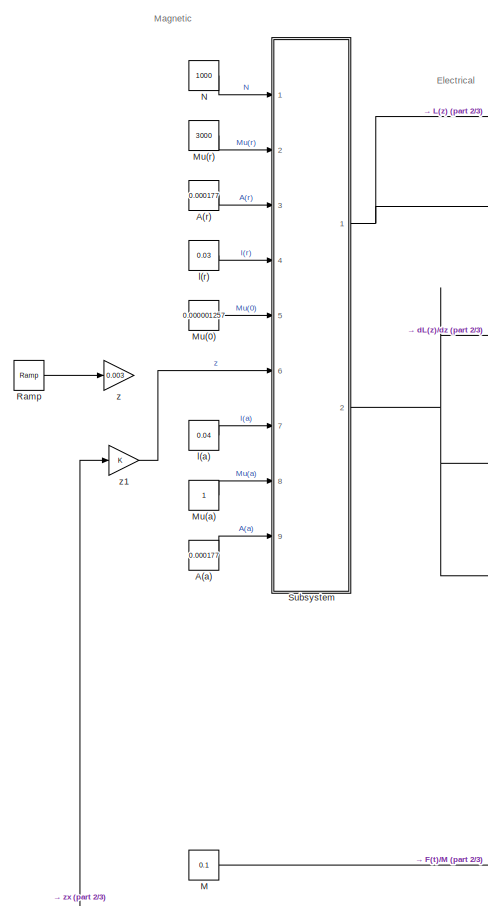
[diagram: root canvas - part 1/3, left side, full height]
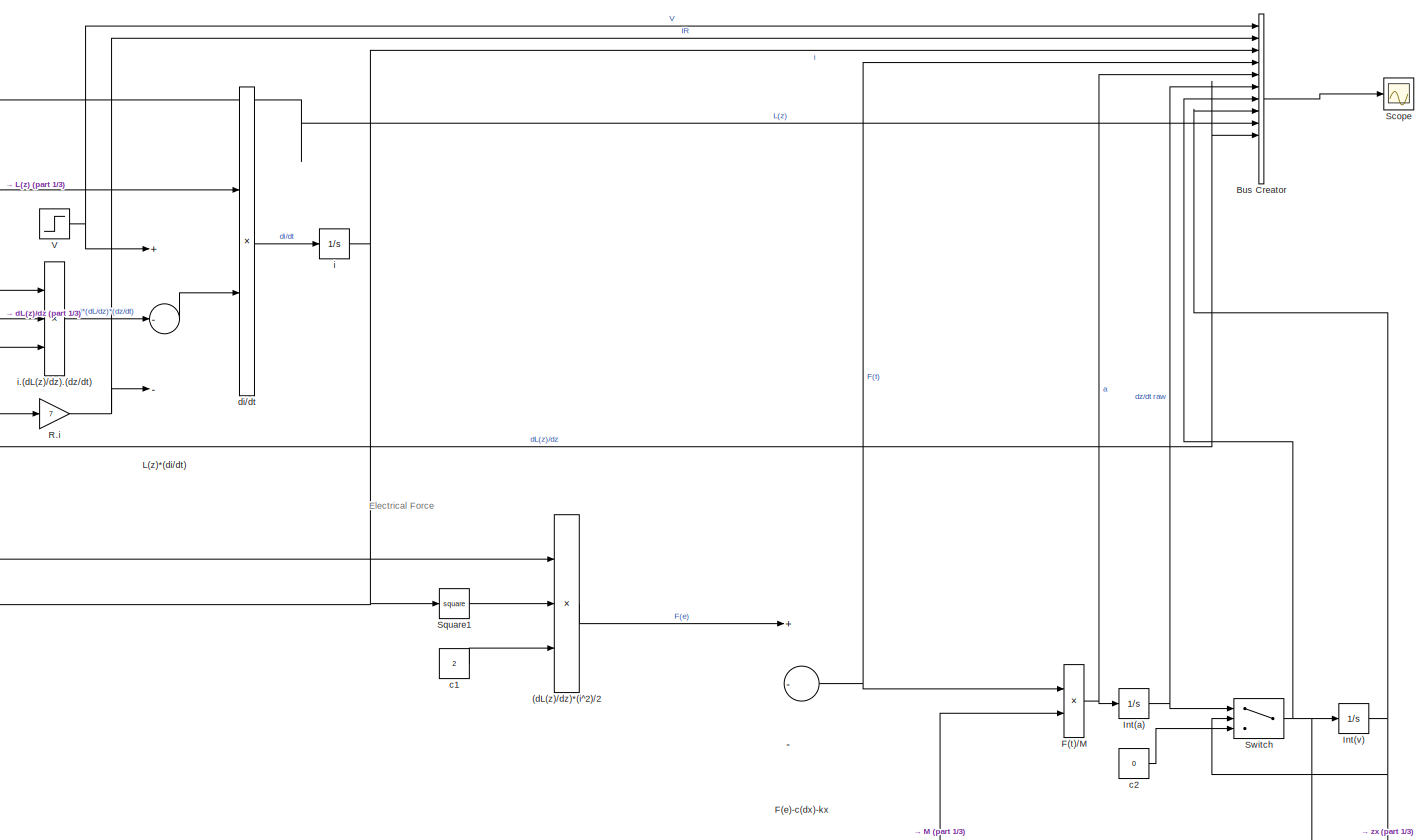
[diagram: root canvas - part 2/3, center side, full height]
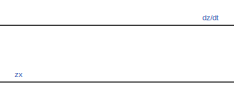
[diagram: root canvas - part 3/3, bottom center region]
MODEL slx_4d389793d27a
KIND model
CONFIG AbsTol = auto
CONFIG FixedStep = 0.00001
CONFIG MaxStep = auto
CONFIG MinStep = auto
CONFIG RelTol = 1e-3
CONFIG SampleTimeConstraint = Unconstrained
CONFIG Solver = FixedStepAuto
CONFIG SolverMode = SingleTasking
CONFIG SolverName = FixedStepAuto
CONFIG StartTime = 0.0
CONFIG StopTime = 5
BLOCK [Product] (dL(z)//dz)*(i^2)//2
  InputSameDT = off
  Inputs = **/
  OutDataTypeStr = Inherit: Inherit via internal rule
  Ports = [3, 1]
  RndMeth = Floor
  SaturateOnIntegerOverflow = off
BLOCK [Constant] A(a)
  Value = 0.000177
BLOCK [Constant] A(r)
  Value = 0.000177
BLOCK [BusCreator] Bus Creator
  DisplayOption = bar
  InheritFromInputs = on
  Inputs = 13
  Ports = [13, 1]
BLOCK [Sum] F(e)-c(dx)-kx
  InputSameDT = off
  Inputs = +--
  OutDataTypeStr = Inherit: Inherit via internal rule
  Ports = [3, 1]
  SaturateOnIntegerOverflow = off
BLOCK [Product] F(t)//M
  InputSameDT = off
  Inputs = */
  OutDataTypeStr = Inherit: Inherit via internal rule
  Ports = [2, 1]
  RndMeth = Floor
  SaturateOnIntegerOverflow = off
BLOCK [Integrator] Int(a)
  LowerSaturationLimit = 0
  Ports = [1, 1]
  UpperSaturationLimit = 10000
BLOCK [Integrator] Int(v)
  LimitOutput = on
  LowerSaturationLimit = 0
  Ports = [1, 1]
  UpperSaturationLimit = 0.03
BLOCK [Sum] L(z)*(di//dt)
  InputSameDT = off
  Inputs = +--
  OutDataTypeStr = Inherit: Inherit via internal rule
  Ports = [3, 1]
  SaturateOnIntegerOverflow = off
BLOCK [Constant] M
  Value = 0.1
BLOCK [Constant] Mu(0)
  Value = 0.000001257
BLOCK [Constant] Mu(a)
BLOCK [Constant] Mu(r)
  Value = 3000
BLOCK [Constant] N
  Value = 1000
BLOCK [Gain] R.i
  Gain = 7
  OutDataTypeStr = Inherit: Inherit via internal rule
  ParamDataTypeStr = Inherit: Inherit via internal rule
  SaturateOnIntegerOverflow = off
BLOCK [Reference] Ramp  REF=simulink/Sources/Ramp
  Ports = [0, 1]
  SourceBlock = simulink/Sources/Ramp
  SourceType = Ramp
BLOCK [Scope] Scope
  Floating = off
  NumInputPorts = 1
  Ports = [1]
  ScopeSpecificationString = Simulink.scopes.TimeScopeBlockCfg('CurrentConfiguration', extmgr.ConfigurationSet(extmgr.Configuration('Core','General UI',true),extmgr.Configuration('Core','Source UI',true),extmgr.Configuration('Sources','WiredSimulink',true),extmgr.Configuration('Visuals','Time Domain',true,'SerializedDisplays',{struct('MinYLimReal','-41.45318','MaxYLimReal','80.27395','YLabelReal','','MinYLimMag','0.00000','Ma...<+2118ch>
BLOCK [Math] Square1
  Operator = square
  Ports = [1, 1]
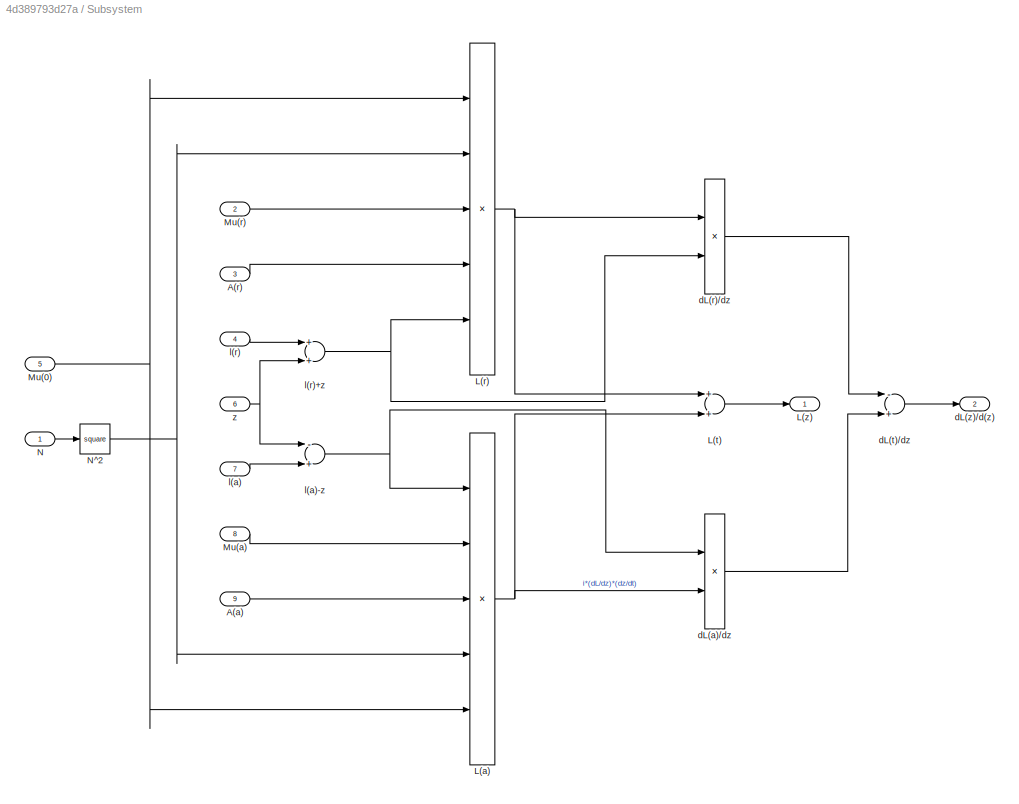
BLOCK [SubSystem] Subsystem
  Ports = [9, 2]
  RequestExecContextInheritance = off
BLOCK [Inport] Subsystem/A(a)
  IconDisplay = Port number
  Port = 9
BLOCK [Inport] Subsystem/A(r)
  IconDisplay = Port number
  Port = 3
BLOCK [Product] Subsystem/L(a)
  InputSameDT = off
  Inputs = /****
  OutDataTypeStr = Inherit: Inherit via internal rule
  Ports = [5, 1]
  RndMeth = Floor
  SaturateOnIntegerOverflow = off
BLOCK [Product] Subsystem/L(r)
  InputSameDT = off
  Inputs = ****/
  OutDataTypeStr = Inherit: Inherit via internal rule
  Ports = [5, 1]
  RndMeth = Floor
  SaturateOnIntegerOverflow = off
BLOCK [Sum] Subsystem/L(t)
  InputSameDT = off
  OutDataTypeStr = Inherit: Inherit via internal rule
  Ports = [2, 1]
  SaturateOnIntegerOverflow = off
BLOCK [Outport] Subsystem/L(z)
  IconDisplay = Port number
BLOCK [Inport] Subsystem/Mu(0)
  IconDisplay = Port number
  Port = 5
BLOCK [Inport] Subsystem/Mu(a)
  IconDisplay = Port number
  Port = 8
BLOCK [Inport] Subsystem/Mu(r)
  IconDisplay = Port number
  Port = 2
BLOCK [Inport] Subsystem/N
  IconDisplay = Port number
BLOCK [Math] Subsystem/N^2
  Operator = square
  Ports = [1, 1]
BLOCK [Product] Subsystem/dL(a)//dz
  InputSameDT = off
  Inputs = /*
  OutDataTypeStr = Inherit: Inherit via internal rule
  Ports = [2, 1]
  RndMeth = Floor
  SaturateOnIntegerOverflow = off
BLOCK [Product] Subsystem/dL(r)//dz
  InputSameDT = off
  Inputs = */
  OutDataTypeStr = Inherit: Inherit via internal rule
  Ports = [2, 1]
  RndMeth = Floor
  SaturateOnIntegerOverflow = off
BLOCK [Sum] Subsystem/dL(t)//dz
  InputSameDT = off
  Inputs = -+
  OutDataTypeStr = Inherit: Inherit via internal rule
  Ports = [2, 1]
  SaturateOnIntegerOverflow = off
BLOCK [Outport] Subsystem/dL(z)//d(z)
  IconDisplay = Port number
  Port = 2
BLOCK [Inport] Subsystem/l(a)
  IconDisplay = Port number
  Port = 7
BLOCK [Sum] Subsystem/l(a)-z
  InputSameDT = off
  Inputs = -+
  OutDataTypeStr = Inherit: Inherit via internal rule
  Ports = [2, 1]
  SaturateOnIntegerOverflow = off
BLOCK [Inport] Subsystem/l(r)
  IconDisplay = Port number
  Port = 4
BLOCK [Sum] Subsystem/l(r)+z
  InputSameDT = off
  OutDataTypeStr = Inherit: Inherit via internal rule
  Ports = [2, 1]
  SaturateOnIntegerOverflow = off
BLOCK [Inport] Subsystem/z
  IconDisplay = Port number
  Port = 6
BLOCK [Switch] Switch
  InputSameDT = off
  SaturateOnIntegerOverflow = off
  Threshold = 0.03
BLOCK [Step] V
  After = 35
  SampleTime = 0
BLOCK [Constant] c1
  Value = 2
BLOCK [Constant] c2
  Value = 0
BLOCK [Product] di//dt
  InputSameDT = off
  Inputs = /*
  OutDataTypeStr = Inherit: Inherit via internal rule
  Ports = [2, 1]
  RndMeth = Floor
  SaturateOnIntegerOverflow = off
BLOCK [Integrator] i
  LowerSaturationLimit = 0
  Ports = [1, 1]
  UpperSaturationLimit = 10000
BLOCK [Product] i.(dL(z)//dz).(dz//dt)
  InputSameDT = off
  Inputs = ***
  OutDataTypeStr = Inherit: Inherit via internal rule
  Ports = [3, 1]
  RndMeth = Floor
  SaturateOnIntegerOverflow = off
BLOCK [Constant] l(a)
  Value = 0.04
BLOCK [Constant] l(r)
  Value = 0.03
BLOCK [Gain] z
  Gain = 0.003
  OutDataTypeStr = Inherit: Inherit via internal rule
  ParamDataTypeStr = Inherit: Inherit via internal rule
  SaturateOnIntegerOverflow = off
BLOCK [Gain] z1
  OutDataTypeStr = Inherit: Inherit via internal rule
  ParamDataTypeStr = Inherit: Inherit via internal rule
  SaturateOnIntegerOverflow = off
ANNOTATION (root): Electrical
ANNOTATION (root): Electrical Force
ANNOTATION (root): Magnetic
LINE (dL(z)//dz)*(i^2)//2:1 -> F(e)-c(dx)-kx:1
LINE A(a):1 -> Subsystem:9
LINE A(r):1 -> Subsystem:3
LINE Bus Creator:1 -> Scope:1
NET F(e)-c(dx)-kx:1 -> Bus Creator:4, F(t)//M:1
NET F(t)//M:1 -> Bus Creator:5, Int(a):1
NET Int(a):1 -> Bus Creator:6, Switch:1
NET Int(v):1 -> Bus Creator:8, Switch:2, z1:1
LINE L(z)*(di//dt):1 -> di//dt:2
LINE M:1 -> F(t)//M:2
LINE Mu(0):1 -> Subsystem:5
LINE Mu(a):1 -> Subsystem:8
LINE Mu(r):1 -> Subsystem:2
LINE N:1 -> Subsystem:1
NET R.i:1 -> Bus Creator:2, L(z)*(di//dt):3
LINE Ramp:1 -> z:1
LINE Square1:1 -> (dL(z)//dz)*(i^2)//2:2
LINE Subsystem/A(a):1 -> Subsystem/L(a):3
LINE Subsystem/A(r):1 -> Subsystem/L(r):4
NET Subsystem/L(a):1 -> Subsystem/L(t):2, Subsystem/dL(a)//dz:2
NET Subsystem/L(r):1 -> Subsystem/L(t):1, Subsystem/dL(r)//dz:1
LINE Subsystem/L(t):1 -> Subsystem/L(z):1
NET Subsystem/Mu(0):1 -> Subsystem/L(a):5, Subsystem/L(r):1
LINE Subsystem/Mu(a):1 -> Subsystem/L(a):2
LINE Subsystem/Mu(r):1 -> Subsystem/L(r):3
LINE Subsystem/N:1 -> Subsystem/N^2:1
NET Subsystem/N^2:1 -> Subsystem/L(a):4, Subsystem/L(r):2
LINE Subsystem/dL(a)//dz:1 -> Subsystem/dL(t)//dz:2
LINE Subsystem/dL(r)//dz:1 -> Subsystem/dL(t)//dz:1
LINE Subsystem/dL(t)//dz:1 -> Subsystem/dL(z)//d(z):1
NET Subsystem/l(a)-z:1 -> Subsystem/L(a):1, Subsystem/dL(a)//dz:1
LINE Subsystem/l(a):1 -> Subsystem/l(a)-z:2
NET Subsystem/l(r)+z:1 -> Subsystem/L(r):5, Subsystem/dL(r)//dz:2
LINE Subsystem/l(r):1 -> Subsystem/l(r)+z:1
NET Subsystem/z:1 -> Subsystem/l(a)-z:1, Subsystem/l(r)+z:2
NET Subsystem:1 -> Bus Creator:9, di//dt:1
NET Subsystem:2 -> (dL(z)//dz)*(i^2)//2:1, Bus Creator:10, i.(dL(z)//dz).(dz//dt):2
NET Switch:1 -> Bus Creator:7, Int(v):1, i.(dL(z)//dz).(dz//dt):1
NET V:1 -> Bus Creator:1, L(z)*(di//dt):1
LINE c1:1 -> (dL(z)//dz)*(i^2)//2:3
LINE c2:1 -> Switch:3
LINE di//dt:1 -> i:1
LINE i.(dL(z)//dz).(dz//dt):1 -> L(z)*(di//dt):2
NET i:1 -> Bus Creator:3, R.i:1, Square1:1, i.(dL(z)//dz).(dz//dt):3
LINE l(a):1 -> Subsystem:7
LINE l(r):1 -> Subsystem:4
LINE z1:1 -> Subsystem:6
note: NET lines group one-source signal fan-out (src -> all destinations, sorted); 1:1 wires keep LINE
